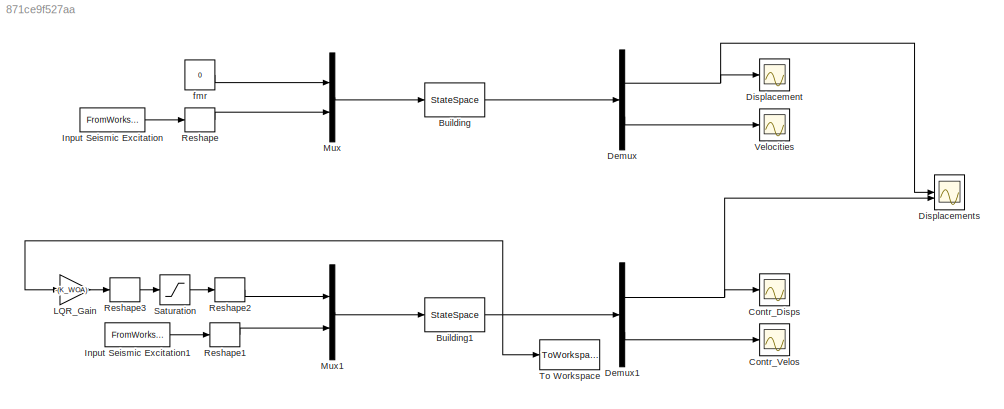
MODEL slx_871ce9f527aa
KIND model
CONFIG AbsTol = auto
CONFIG EnableMultiTasking = off
CONFIG FixedStep = auto
CONFIG MaxStep = auto
CONFIG MinStep = auto
CONFIG RelTol = 1e-3
CONFIG SampleTimeConstraint = Unconstrained
CONFIG SolverName = VariableStepAuto
CONFIG StartTime = 0.0
CONFIG StopTime = 10.0
BLOCK [StateSpace] Building
  A = A
  B = Bce
  C = C
  ContinuousStateAttributes = "Building"
  D = Dcf
  InitialCondition = 0
BLOCK [StateSpace] Building1
  A = A
  B = Bce
  C = eye(20)
  ContinuousStateAttributes = "Building"
  D = zeros(20,2)
  InitialCondition = 0
BLOCK [Scope] Contr_Disps
  Floating = off
  NumInputPorts = 1
  ScopeSpecificationString = Simulink.scopes.TimeScopeBlockCfg('CurrentConfiguration', extmgr.ConfigurationSet(extmgr.Configuration('Core','General UI',true),extmgr.Configuration('Core','Source UI',true),extmgr.Configuration('Sources','WiredSimulink',true,'DataLoggingVariableName','ScopeData2'),extmgr.Configuration('Visuals','Time Domain',true,'SerializedDisplays',{struct('MinYLimReal','-0.02124','MaxYLimReal','0.01993','YLab...<+1575ch>
BLOCK [Scope] Contr_Velos
  Floating = off
  NumInputPorts = 1
  ScopeSpecificationString = Simulink.scopes.TimeScopeBlockCfg('CurrentConfiguration', extmgr.ConfigurationSet(extmgr.Configuration('Core','General UI',true),extmgr.Configuration('Core','Source UI',true),extmgr.Configuration('Sources','WiredSimulink',true,'DataLoggingVariableName','ScopeData1'),extmgr.Configuration('Visuals','Time Domain',true),extmgr.Configuration('Tools','Plot Navigation',true),extmgr.Configuration('Tools',...<+40ch>
BLOCK [Demux] Demux
  Outputs = 2
BLOCK [Demux] Demux1
  Outputs = 2
BLOCK [Scope] Displacement
  Floating = off
  NumInputPorts = 1
  ScopeSpecificationString = Simulink.scopes.TimeScopeBlockCfg('CurrentConfiguration', extmgr.ConfigurationSet(extmgr.Configuration('Core','General UI',true),extmgr.Configuration('Core','Source UI',true),extmgr.Configuration('Sources','WiredSimulink',true,'DataLoggingVariableName','ScopeData1'),extmgr.Configuration('Visuals','Time Domain',true),extmgr.Configuration('Tools','Plot Navigation',true),extmgr.Configuration('Tools',...<+40ch>
BLOCK [Scope] Displacements
  Floating = off
  NumInputPorts = 2
  ScopeSpecificationString = Simulink.scopes.TimeScopeBlockCfg('CurrentConfiguration', extmgr.ConfigurationSet(extmgr.Configuration('Core','General UI',true),extmgr.Configuration('Core','Source UI',true),extmgr.Configuration('Sources','WiredSimulink',true),extmgr.Configuration('Visuals','Time Domain',true,'SerializedDisplays',{struct('MinYLimReal','-0.08331','MaxYLimReal','0.08371','YLabelReal','Displacement (m)','MinYLimMag'...<+3948ch>
BLOCK [FromWorkspace] Input Seismic Excitation
  OutputAfterFinalValue = Setting to zero
  VariableName = input_excite
BLOCK [FromWorkspace] Input Seismic Excitation1
  OutputAfterFinalValue = Setting to zero
  VariableName = input_excite
BLOCK [Gain] LQR_Gain
  Gain = -(K_WOA)
  Multiplication = Matrix(K*u)
BLOCK [Mux] Mux
  DisplayOption = bar
  Inputs = 2
BLOCK [Mux] Mux1
  DisplayOption = bar
  Inputs = 2
BLOCK [Reshape] Reshape
  OutputDimensionality = Customize
BLOCK [Reshape] Reshape1
  OutputDimensionality = Customize
BLOCK [Reshape] Reshape2
  OutputDimensionality = Customize
BLOCK [Reshape] Reshape3
  OutputDimensionality = Customize
BLOCK [Saturate] Saturation
  LowerLimit = F_MR_MIN
  UpperLimit = F_MR_MAX
BLOCK [ToWorkspace] To Workspace
  MaxDataPoints = inf
  SampleTime = -1
  SaveFormat = Timeseries
  VariableName = Output
BLOCK [Scope] Velocities
  Floating = off
  NumInputPorts = 1
  ScopeSpecificationString = Simulink.scopes.TimeScopeBlockCfg('CurrentConfiguration', extmgr.ConfigurationSet(extmgr.Configuration('Core','General UI',true),extmgr.Configuration('Core','Source UI',true),extmgr.Configuration('Sources','WiredSimulink',true,'DataLoggingVariableName','ScopeData1'),extmgr.Configuration('Visuals','Time Domain',true,'SerializedDisplays',{struct('MinYLimReal','-2.64447','MaxYLimReal','2.02952','YLab...<+1567ch>
BLOCK [Constant] fmr
  SampleTime = 0.002
  Value = 0
NET Building1:1 -> Demux1:1, LQR_Gain:1, To Workspace:1
LINE Building:1 -> Demux:1
NET Demux1:1 -> Contr_Disps:1, Displacements:2
LINE Demux1:2 -> Contr_Velos:1
NET Demux:1 -> Displacement:1, Displacements:1
LINE Demux:2 -> Velocities:1
LINE Input Seismic Excitation1:1 -> Reshape1:1
LINE Input Seismic Excitation:1 -> Reshape:1
LINE LQR_Gain:1 -> Reshape3:1
LINE Mux1:1 -> Building1:1
LINE Mux:1 -> Building:1
LINE Reshape1:1 -> Mux1:2
LINE Reshape2:1 -> Mux1:1
LINE Reshape3:1 -> Saturation:1
LINE Reshape:1 -> Mux:2
LINE Saturation:1 -> Reshape2:1
LINE fmr:1 -> Mux:1
note: NET lines group one-source signal fan-out (src -> all destinations, sorted); 1:1 wires keep LINE
